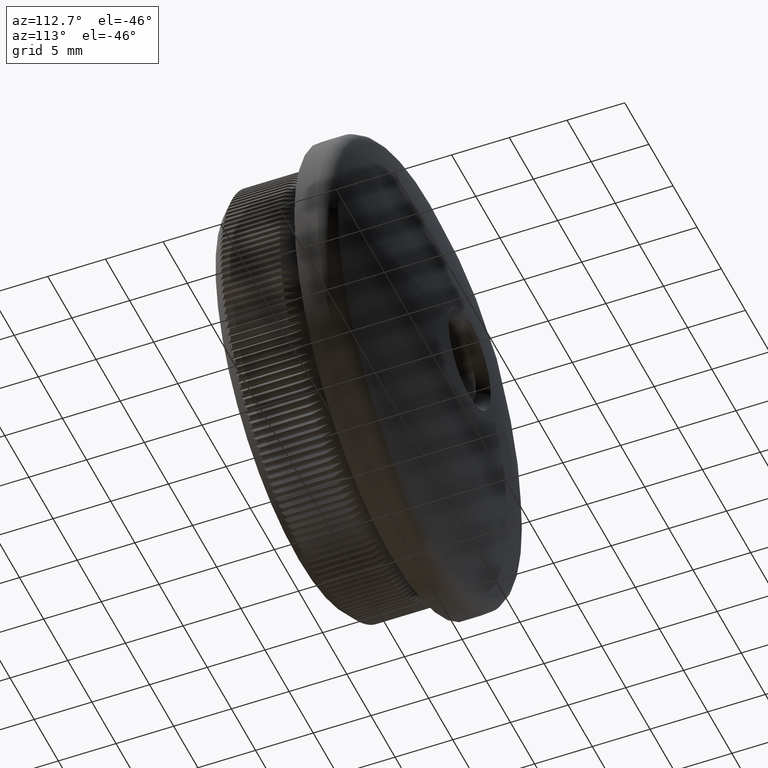
[diagram: clean part render]
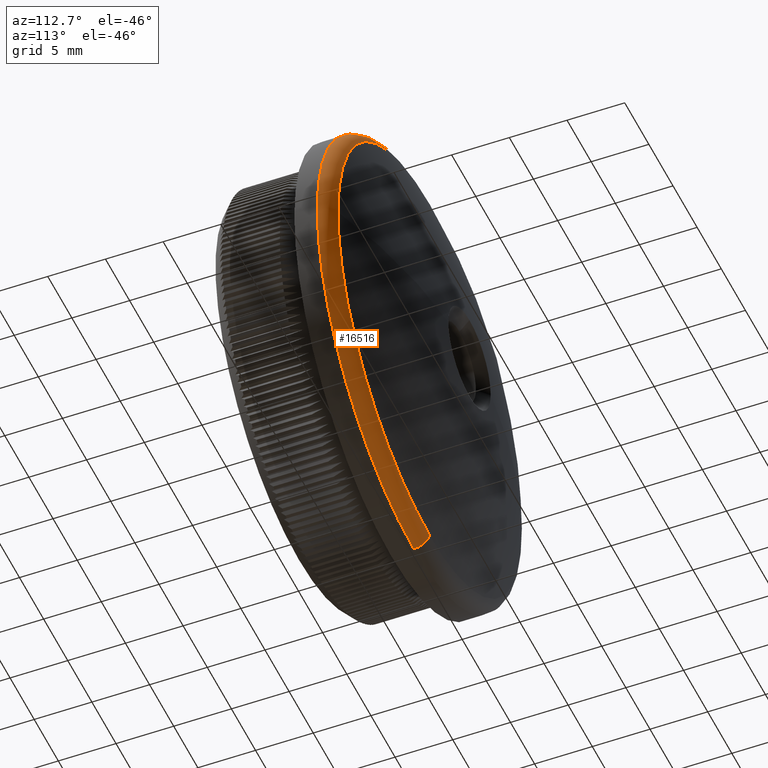
[diagram: same view with one face highlighted and labeled with its STEP entity id]
A machine part, auxiliary view. The second image highlights one B-rep face of the part: STEP entity #16516.
In plain terms, the highlighted toroidal blend (fillet) surface has major radius 18.5 mm and minor (blend) radius 1.5 mm.
Its self-contained STEP definition (entity closure, byte-faithful):
#26 = EDGE_LOOP ( 'NONE', ( #5247, #12888, #8018, #18722, #18895 ) ) ;
#455 = CIRCLE ( 'NONE', #9596, 19.04950495049504900 ) ;
#1054 = DIRECTION ( 'NONE',  ( 0.0000000000000000000, 0.0000000000000000000, 1.000000000000000000 ) ) ;
#1147 = CARTESIAN_POINT ( 'NONE',  ( 19.04950495049505900, 11.38508407702794900, 0.0000000000000000000 ) ) ;
#1464 = VERTEX_POINT ( 'NONE', #6805 ) ;
#1551 = CIRCLE ( 'NONE', #14434, 20.00000000000000000 ) ;
#2893 = DIRECTION ( 'NONE',  ( 0.0000000000000000000, 0.0000000000000000000, -1.000000000000000000 ) ) ;
#3084 = CARTESIAN_POINT ( 'NONE',  ( 0.0000000000000000000, 9.989360497882925600, 0.0000000000000000000 ) ) ;
#3432 = DIRECTION ( 'NONE',  ( -1.000000000000000000, 0.0000000000000000000, 0.0000000000000000000 ) ) ;
#3728 = DIRECTION ( 'NONE',  ( 1.000000000000000000, 0.0000000000000000000, -1.224646799147353000E-016 ) ) ;
#5247 = ORIENTED_EDGE ( 'NONE', *, *, #17396, .F. ) ;
#5379 = AXIS2_PLACEMENT_3D ( 'NONE', #25875, #16333, #16643 ) ;
#6108 = CARTESIAN_POINT ( 'NONE',  ( 2.265596578422603000E-015, 9.989360497882925600, 18.50000000000000000 ) ) ;
#6340 = CIRCLE ( 'NONE', #13022, 19.04950495049504900 ) ;
#6805 = CARTESIAN_POINT ( 'NONE',  ( 2.449293598294706500E-015, 9.989360497882925600, 20.00000000000000000 ) ) ;
#7292 = EDGE_CURVE ( 'NONE', #20381, #1464, #1551, .T. ) ;
#7855 = DIRECTION ( 'NONE',  ( 0.0000000000000000000, 0.0000000000000000000, -1.000000000000000000 ) ) ;
#8018 = ORIENTED_EDGE ( 'NONE', *, *, #7292, .F. ) ;
#9596 = AXIS2_PLACEMENT_3D ( 'NONE', #22616, #22420, #10960 ) ;
#9770 = DIRECTION ( 'NONE',  ( 0.0000000000000000000, 1.000000000000000000, 0.0000000000000000000 ) ) ;
#9863 = AXIS2_PLACEMENT_3D ( 'NONE', #19810, #3432, #1054 ) ;
#10960 = DIRECTION ( 'NONE',  ( 0.0000000000000000000, 0.0000000000000000000, -1.000000000000000000 ) ) ;
#12375 = AXIS2_PLACEMENT_3D ( 'NONE', #6108, #3728, #20126 ) ;
#12888 = ORIENTED_EDGE ( 'NONE', *, *, #16297, .T. ) ;
#13022 = AXIS2_PLACEMENT_3D ( 'NONE', #29026, #9770, #2893 ) ;
#14381 = CARTESIAN_POINT ( 'NONE',  ( 0.0000000000000000000, 9.989360497882925600, -20.00000000000000000 ) ) ;
#14434 = AXIS2_PLACEMENT_3D ( 'NONE', #3084, #24513, #7855 ) ;
#14950 = VERTEX_POINT ( 'NONE', #26547 ) ;
#16297 = EDGE_CURVE ( 'NONE', #19231, #1464, #24652, .T. ) ;
#16333 = DIRECTION ( 'NONE',  ( -0.0000000000000000000, -1.000000000000000000, -0.0000000000000000000 ) ) ;
#16516 = ADVANCED_FACE ( 'NONE', ( #30159 ), #23912, .T. ) ;
#16643 = DIRECTION ( 'NONE',  ( 0.0000000000000000000, 0.0000000000000000000, -1.000000000000000000 ) ) ;
#17396 = EDGE_CURVE ( 'NONE', #19231, #24742, #455, .T. ) ;
#17418 = CARTESIAN_POINT ( 'NONE',  ( 2.391092562295623400E-015, 11.38508407702794900, 19.04950495049504900 ) ) ;
#18003 = EDGE_CURVE ( 'NONE', #24742, #14950, #6340, .T. ) ;
#18722 = ORIENTED_EDGE ( 'NONE', *, *, #21868, .F. ) ;
#18895 = ORIENTED_EDGE ( 'NONE', *, *, #18003, .F. ) ;
#19231 = VERTEX_POINT ( 'NONE', #17418 ) ;
#19810 = CARTESIAN_POINT ( 'NONE',  ( 0.0000000000000000000, 9.989360497882925600, -18.50000000000000000 ) ) ;
#20068 = CIRCLE ( 'NONE', #9863, 1.500000000000001300 ) ;
#20126 = DIRECTION ( 'NONE',  ( -1.224646799147352000E-016, 0.0000000000000000000, -1.000000000000000000 ) ) ;
#20381 = VERTEX_POINT ( 'NONE', #14381 ) ;
#21868 = EDGE_CURVE ( 'NONE', #14950, #20381, #20068, .T. ) ;
#22420 = DIRECTION ( 'NONE',  ( 0.0000000000000000000, 1.000000000000000000, 0.0000000000000000000 ) ) ;
#22616 = CARTESIAN_POINT ( 'NONE',  ( 0.0000000000000000000, 11.38508407702794900, 0.0000000000000000000 ) ) ;
#23912 = TOROIDAL_SURFACE ( 'NONE', #5379, 18.50000000000000000, 1.500000000000000000 ) ;
#24513 = DIRECTION ( 'NONE',  ( -0.0000000000000000000, -1.000000000000000000, -0.0000000000000000000 ) ) ;
#24652 = CIRCLE ( 'NONE', #12375, 1.500000000000001300 ) ;
#24742 = VERTEX_POINT ( 'NONE', #1147 ) ;
#25875 = CARTESIAN_POINT ( 'NONE',  ( 0.0000000000000000000, 9.989360497882925600, 0.0000000000000000000 ) ) ;
#26547 = CARTESIAN_POINT ( 'NONE',  ( 0.0000000000000000000, 11.38508407702794900, -19.04950495049504900 ) ) ;
#29026 = CARTESIAN_POINT ( 'NONE',  ( 0.0000000000000000000, 11.38508407702794900, 0.0000000000000000000 ) ) ;
#30159 = FACE_OUTER_BOUND ( 'NONE', #26, .T. ) ;